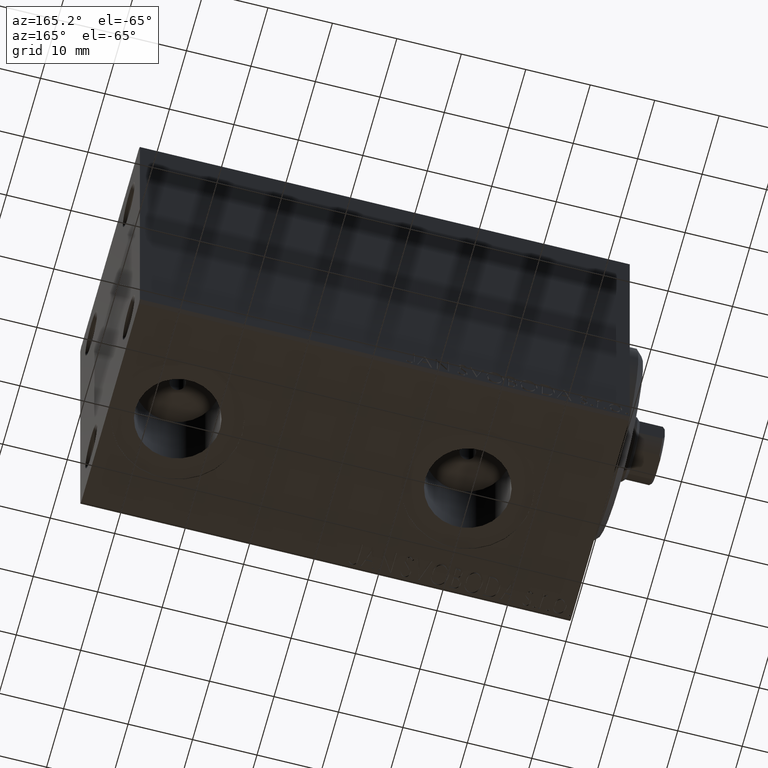
[diagram: clean part render]
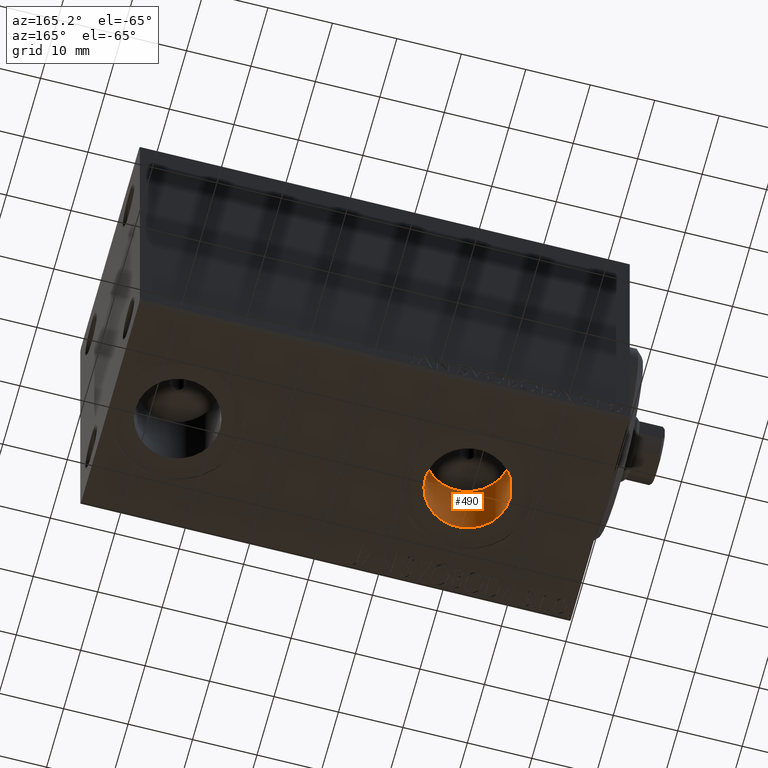
[diagram: same view with one face highlighted and labeled with its STEP entity id]
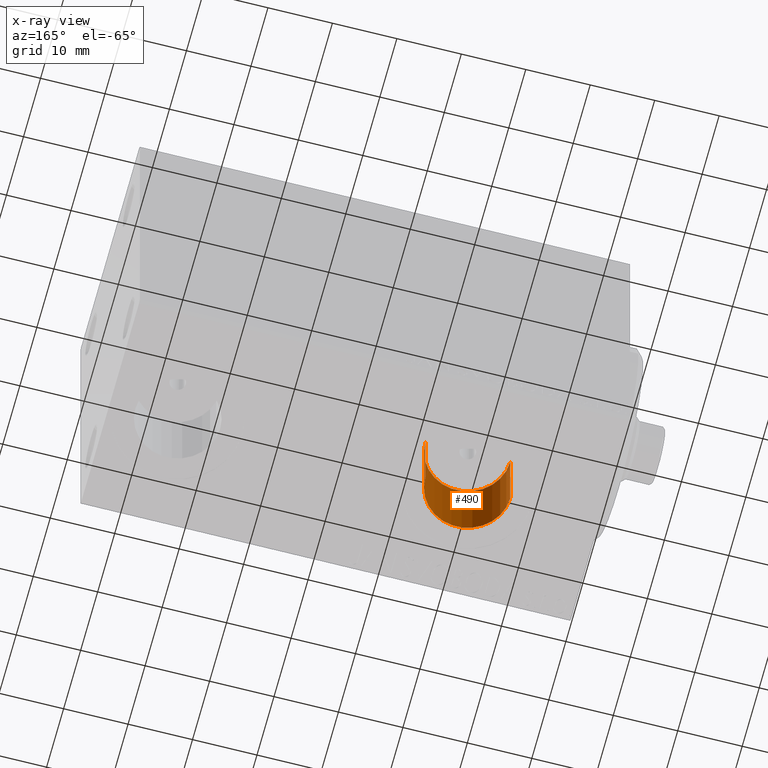
[diagram: x-ray of the same camera — body ghosted, the highlighted face saturated]
A machine part, auxiliary view. The second image highlights one B-rep face of the part: STEP entity #490.
The next image is the same camera in x-ray: the body ghosted, the highlighted face saturated — about 1% of this face is hidden behind the body in this view.
In plain terms, the highlighted cylindrical surface (partial cylindrical patch) has radius 6.58 mm, axis along (-0, -0, -1).
Its self-contained STEP definition (entity closure, byte-faithful):
#356 = CARTESIAN_POINT ( 'NONE',  ( 20.50000000000000355, -2.726986211408916281E-15, -14.50000000000000711 ) ) ;
#490 = ADVANCED_FACE ( 'NONE', ( #45236 ), #17155, .F. ) ;
#1165 = CARTESIAN_POINT ( 'NONE',  ( 27.08000000000000540, -1.921168617569958028E-15, -14.50000000000000711 ) ) ;
#1763 = ORIENTED_EDGE ( 'NONE', *, *, #4276, .T. ) ;
#2215 = DIRECTION ( 'NONE',  ( -1.000000000000000000, 0.000000000000000000, 0.000000000000000000 ) ) ;
#2664 = ORIENTED_EDGE ( 'NONE', *, *, #18322, .F. ) ;
#3110 = CARTESIAN_POINT ( 'NONE',  ( 27.08000000000000540, -1.921168617569958028E-15, -14.50000000000000711 ) ) ;
#4276 = EDGE_CURVE ( 'NONE', #35140, #12703, #11751, .T. ) ;
#7251 = DIRECTION ( 'NONE',  ( -0.000000000000000000, -0.000000000000000000, -1.000000000000000000 ) ) ;
#9218 = DIRECTION ( 'NONE',  ( 0.000000000000000000, 0.000000000000000000, -1.000000000000000000 ) ) ;
#9678 = CARTESIAN_POINT ( 'NONE',  ( 13.92000000000000171, -2.726986211408916281E-15, -14.50000000000000711 ) ) ;
#11751 = LINE ( 'NONE', #1165, #15341 ) ;
#12703 = VERTEX_POINT ( 'NONE', #29915 ) ;
#15310 = ORIENTED_EDGE ( 'NONE', *, *, #17601, .F. ) ;
#15341 = VECTOR ( 'NONE', #22337, 1000.000000000000000 ) ;
#17155 = CYLINDRICAL_SURFACE ( 'NONE', #34331, 6.580000000000002736 ) ;
#17601 = EDGE_CURVE ( 'NONE', #35140, #22693, #33089, .T. ) ;
#18081 = DIRECTION ( 'NONE',  ( -1.000000000000000000, 0.000000000000000000, 0.000000000000000000 ) ) ;
#18322 = EDGE_CURVE ( 'NONE', #22693, #32351, #45540, .T. ) ;
#22337 = DIRECTION ( 'NONE',  ( -0.000000000000000000, -0.000000000000000000, -1.000000000000000000 ) ) ;
#22661 = EDGE_CURVE ( 'NONE', #12703, #32351, #38965, .T. ) ;
#22693 = VERTEX_POINT ( 'NONE', #9678 ) ;
#23254 = DIRECTION ( 'NONE',  ( -1.000000000000000000, 0.000000000000000000, 0.000000000000000000 ) ) ;
#26179 = DIRECTION ( 'NONE',  ( 0.000000000000000000, 0.000000000000000000, -1.000000000000000000 ) ) ;
#26445 = VECTOR ( 'NONE', #45310, 1000.000000000000000 ) ;
#26729 = CARTESIAN_POINT ( 'NONE',  ( 20.50000000000000355, -2.726986211408916281E-15, -27.40000000000000924 ) ) ;
#28568 = CARTESIAN_POINT ( 'NONE',  ( 13.92000000000000171, -2.726986211408916281E-15, -27.40000000000000924 ) ) ;
#29915 = CARTESIAN_POINT ( 'NONE',  ( 27.08000000000000540, -1.921168617569958028E-15, -27.40000000000000924 ) ) ;
#31298 = CARTESIAN_POINT ( 'NONE',  ( 13.92000000000000171, -2.726986211408916281E-15, -14.50000000000000711 ) ) ;
#32351 = VERTEX_POINT ( 'NONE', #28568 ) ;
#33089 = CIRCLE ( 'NONE', #36024, 6.580000000000002736 ) ;
#33784 = CARTESIAN_POINT ( 'NONE',  ( 20.50000000000000355, -2.726986211408916281E-15, -14.50000000000000711 ) ) ;
#34331 = AXIS2_PLACEMENT_3D ( 'NONE', #356, #7251, #18081 ) ;
#35140 = VERTEX_POINT ( 'NONE', #3110 ) ;
#36024 = AXIS2_PLACEMENT_3D ( 'NONE', #33784, #26179, #2215 ) ;
#36047 = AXIS2_PLACEMENT_3D ( 'NONE', #26729, #9218, #23254 ) ;
#38046 = ORIENTED_EDGE ( 'NONE', *, *, #22661, .T. ) ;
#38965 = CIRCLE ( 'NONE', #36047, 6.580000000000002736 ) ;
#39221 = EDGE_LOOP ( 'NONE', ( #15310, #1763, #38046, #2664 ) ) ;
#45236 = FACE_OUTER_BOUND ( 'NONE', #39221, .T. ) ;
#45310 = DIRECTION ( 'NONE',  ( -0.000000000000000000, -0.000000000000000000, -1.000000000000000000 ) ) ;
#45540 = LINE ( 'NONE', #31298, #26445 ) ;